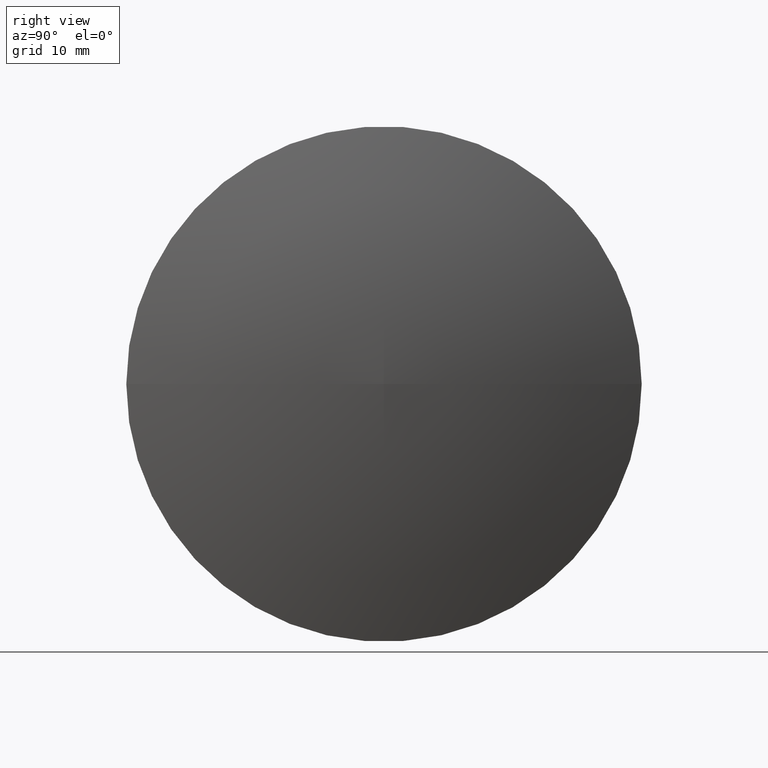
[diagram: clean part render]
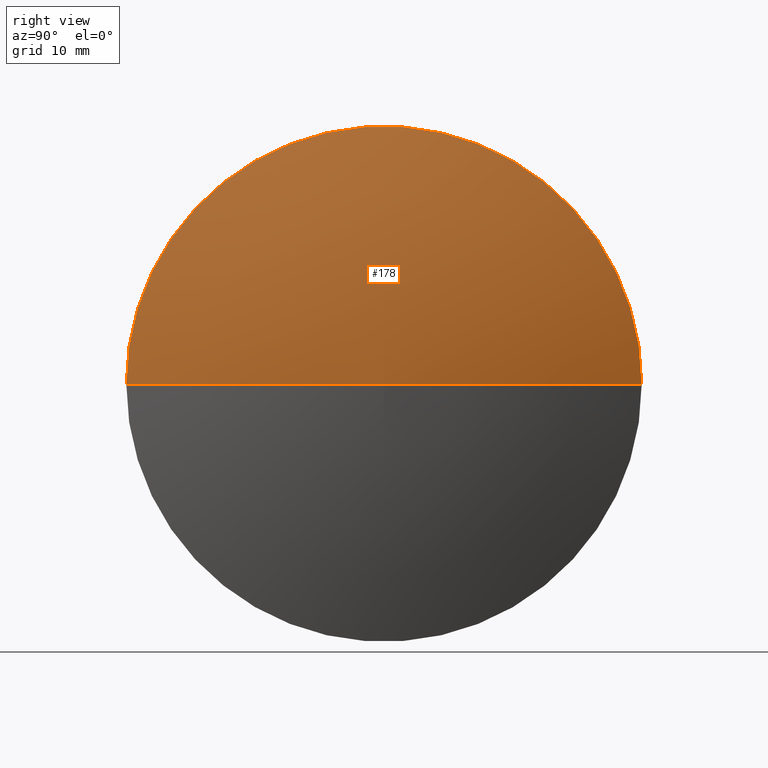
[diagram: same view with one face highlighted and labeled with its STEP entity id]
A machine part, right view. The second image highlights one B-rep face of the part: STEP entity #178.
In plain terms, the highlighted toroidal blend (fillet) surface has major radius 0.1473 mm and minor (blend) radius 82.6844 mm.
Its self-contained STEP definition (entity closure, byte-faithful):
#2 = ORIENTED_EDGE ( 'NONE', *, *, #126, .F. ) ;
#4 = CARTESIAN_POINT ( 'NONE',  ( 460.4676614032583200, -36.17253721817285600, 0.0000000000000000000 ) ) ;
#5 = EDGE_CURVE ( 'NONE', #158, #166, #30, .T. ) ;
#11 = DIRECTION ( 'NONE',  ( -0.9999981134525887100, 0.001942444661694015300, -0.0000000000000000000 ) ) ;
#25 = EDGE_LOOP ( 'NONE', ( #90, #50, #2 ) ) ;
#29 = DIRECTION ( 'NONE',  ( -1.000000000000000000, 0.0000000000000000000, 0.0000000000000000000 ) ) ;
#30 = CIRCLE ( 'NONE', #113, 82.68435400516793300 ) ;
#40 = CIRCLE ( 'NONE', #88, 25.00578017029978600 ) ;
#50 = ORIENTED_EDGE ( 'NONE', *, *, #131, .T. ) ;
#56 = DIRECTION ( 'NONE',  ( -2.378808637464439400E-019, -1.224644488793104600E-016, 1.000000000000000000 ) ) ;
#58 = VERTEX_POINT ( 'NONE', #148 ) ;
#66 = FACE_OUTER_BOUND ( 'NONE', #25, .T. ) ;
#75 = CARTESIAN_POINT ( 'NONE',  ( 456.5005177917109900, -61.17065859168352700, 0.0000000000000000000 ) ) ;
#78 = DIRECTION ( 'NONE',  ( -0.001942444661694358800, -0.9999981134525884900, 0.0000000000000000000 ) ) ;
#81 = CARTESIAN_POINT ( 'NONE',  ( 377.7835945294264700, -36.01192769086913600, 0.0000000000000000000 ) ) ;
#88 = AXIS2_PLACEMENT_3D ( 'NONE', #96, #110, #78 ) ;
#90 = ORIENTED_EDGE ( 'NONE', *, *, #5, .F. ) ;
#91 = DIRECTION ( 'NONE',  ( 0.0000000000000000000, -1.000000000000000000, -1.224644488793104600E-016 ) ) ;
#96 = CARTESIAN_POINT ( 'NONE',  ( 456.5490901359143000, -36.16492559597344300, 0.0000000000000000000 ) ) ;
#99 = DIRECTION ( 'NONE',  ( -0.001942444661694015300, -0.9999981134525887100, 0.0000000000000000000 ) ) ;
#104 = CARTESIAN_POINT ( 'NONE',  ( 377.7838805839032300, -35.86466278147475600, 0.0000000000000000000 ) ) ;
#110 = DIRECTION ( 'NONE',  ( -0.9999981134525887100, 0.001942444661694015300, -0.0000000000000000000 ) ) ;
#113 = AXIS2_PLACEMENT_3D ( 'NONE', #104, #118, #29 ) ;
#118 = DIRECTION ( 'NONE',  ( 0.0000000000000000000, -0.0000000000000000000, -1.000000000000000000 ) ) ;
#126 = EDGE_CURVE ( 'NONE', #166, #58, #40, .T. ) ;
#131 = EDGE_CURVE ( 'NONE', #158, #58, #160, .T. ) ;
#148 = CARTESIAN_POINT ( 'NONE',  ( 456.5976624801175500, -11.15919260026343600, 3.062324864574008000E-015 ) ) ;
#150 = AXIS2_PLACEMENT_3D ( 'NONE', #81, #11, #99 ) ;
#157 = TOROIDAL_SURFACE ( 'NONE', #150, -0.1472651872171409100, 82.68435400516793300 ) ;
#158 = VERTEX_POINT ( 'NONE', #4 ) ;
#160 = CIRCLE ( 'NONE', #190, 82.68435400516793300 ) ;
#166 = VERTEX_POINT ( 'NONE', #75 ) ;
#178 = ADVANCED_FACE ( 'NONE', ( #66 ), #157, .T. ) ;
#185 = CARTESIAN_POINT ( 'NONE',  ( 377.7833084749496500, -36.15919260026351600, -1.803478401513073500E-017 ) ) ;
#190 = AXIS2_PLACEMENT_3D ( 'NONE', #185, #56, #91 ) ;